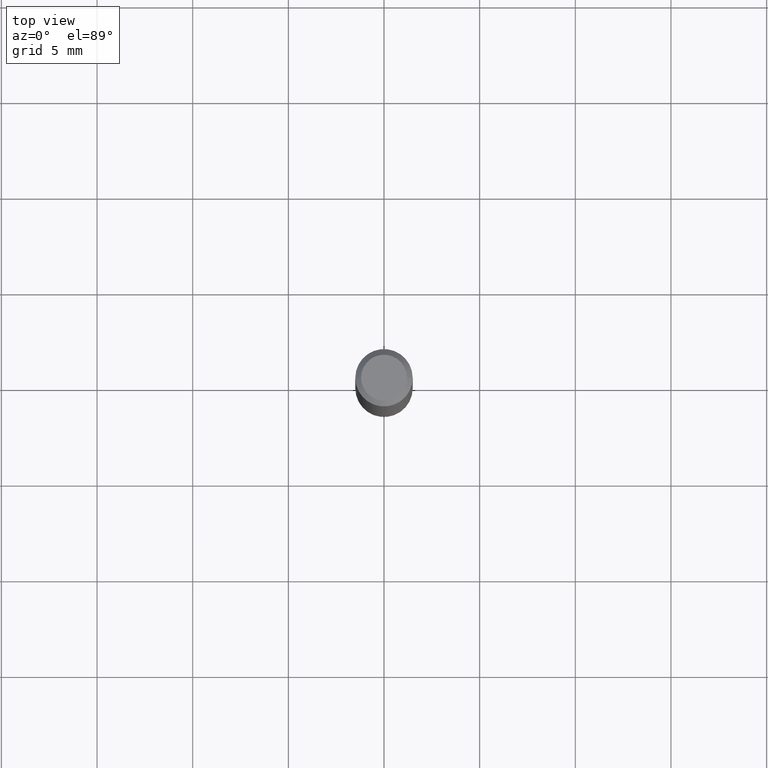
[diagram: clean part render]
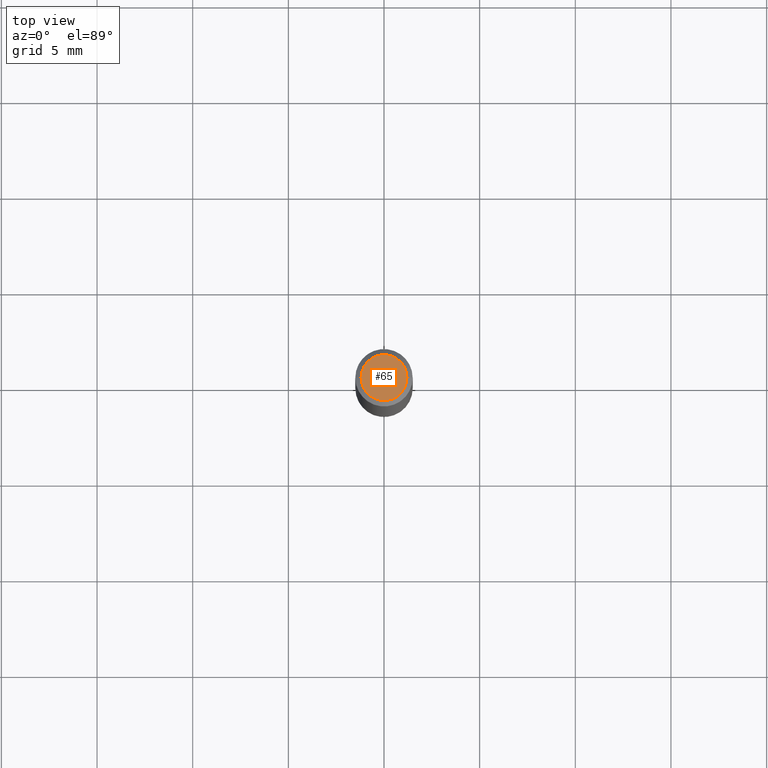
[diagram: same view with one face highlighted and labeled with its STEP entity id]
A machine part, top view. The second image highlights one B-rep face of the part: STEP entity #65.
In plain terms, the highlighted planar face has unit normal (0, -0, -1).
Its self-contained STEP definition (entity closure, byte-faithful):
#20 = VERTEX_POINT ( 'NONE', #198 ) ;
#65 = ADVANCED_FACE ( 'NONE', ( #73 ), #173, .F. ) ;
#73 = FACE_OUTER_BOUND ( 'NONE', #148, .T. ) ;
#94 = CARTESIAN_POINT ( 'NONE',  ( 4.132873053354867254E-48, -5.900647395337818946E-34, -1.690012582823346072E-19 ) ) ;
#104 = AXIS2_PLACEMENT_3D ( 'NONE', #94, #266, #267 ) ;
#128 = CARTESIAN_POINT ( 'NONE',  ( 0.04724000000000000421, -3.852183633974369345E-16, -3.380025165621689721E-19 ) ) ;
#148 = EDGE_LOOP ( 'NONE', ( #354, #367 ) ) ;
#173 = PLANE ( 'NONE',  #104 ) ;
#198 = CARTESIAN_POINT ( 'NONE',  ( -0.04724000000000000421, 3.504923541997677355E-16, -3.380025165670481712E-19 ) ) ;
#213 = EDGE_CURVE ( 'NONE', #20, #433, #409, .T. ) ;
#227 = DIRECTION ( 'NONE',  ( 1.000000000000000000, -6.982962677686266711E-15, 4.876185090822587894E-29 ) ) ;
#266 = DIRECTION ( 'NONE',  ( 2.438088387897960049E-29, -3.491481338843145188E-15, -1.000000000000000000 ) ) ;
#267 = DIRECTION ( 'NONE',  ( -1.000000000000000000, 6.982962677686265922E-15, -4.876176775795935793E-29 ) ) ;
#273 = DIRECTION ( 'NONE',  ( -2.445468806185136597E-29, 3.491481338843145583E-15, 1.000000000000000000 ) ) ;
#279 = DIRECTION ( 'NONE',  ( 1.000000000000000000, -6.982962677686266711E-15, 4.876185090822587894E-29 ) ) ;
#313 = CARTESIAN_POINT ( 'NONE',  ( 8.265746106709734507E-48, -1.180129479067563789E-33, -3.380025165646692144E-19 ) ) ;
#354 = ORIENTED_EDGE ( 'NONE', *, *, #213, .T. ) ;
#367 = ORIENTED_EDGE ( 'NONE', *, *, #391, .T. ) ;
#375 = CARTESIAN_POINT ( 'NONE',  ( 8.265746106709734507E-48, -1.180129479067563789E-33, -3.380025165646692144E-19 ) ) ;
#384 = AXIS2_PLACEMENT_3D ( 'NONE', #313, #476, #279 ) ;
#391 = EDGE_CURVE ( 'NONE', #433, #20, #425, .T. ) ;
#409 = CIRCLE ( 'NONE', #424, 0.04724000000000000421 ) ;
#424 = AXIS2_PLACEMENT_3D ( 'NONE', #375, #273, #227 ) ;
#425 = CIRCLE ( 'NONE', #384, 0.04724000000000000421 ) ;
#433 = VERTEX_POINT ( 'NONE', #128 ) ;
#476 = DIRECTION ( 'NONE',  ( -2.445468806185136597E-29, 3.491481338843145583E-15, 1.000000000000000000 ) ) ;